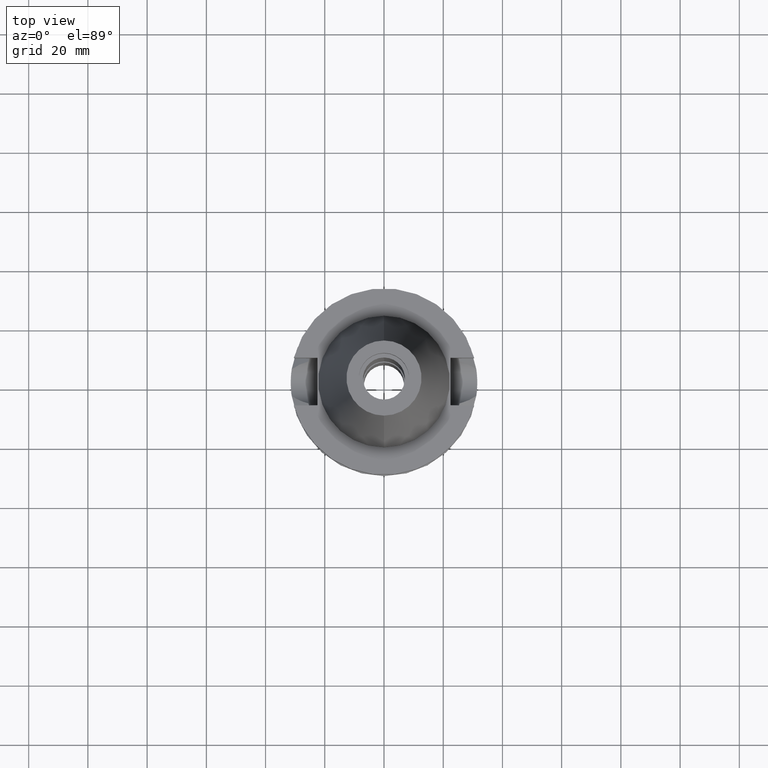
[diagram: clean part render]
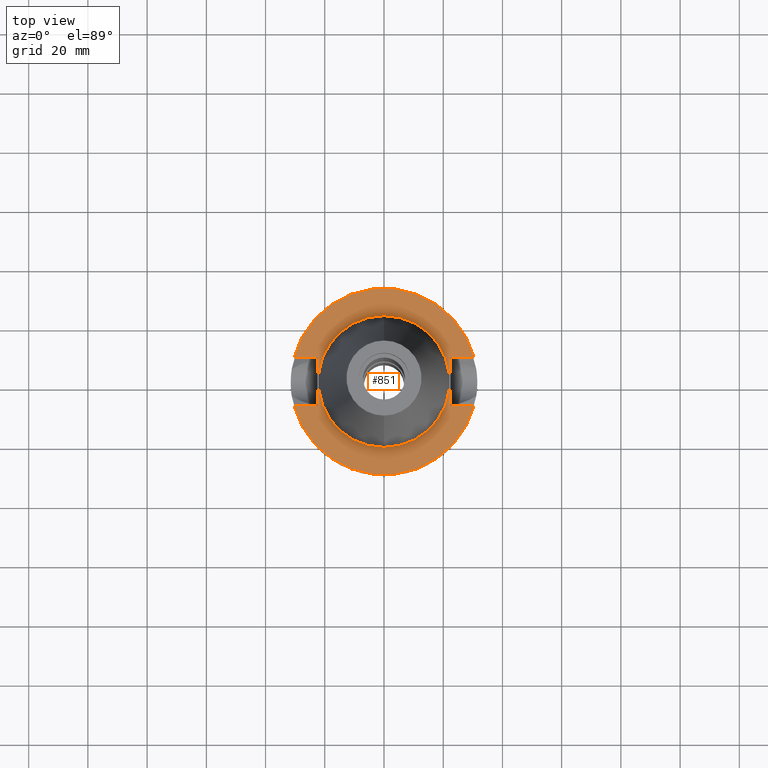
[diagram: same view with one face highlighted and labeled with its STEP entity id]
A machine part, top view. The second image highlights one B-rep face of the part: STEP entity #851.
In plain terms, the highlighted planar face has unit normal (0, 0, -1).
Its self-contained STEP definition (entity closure, byte-faithful):
#87 = FACE_OUTER_BOUND ( 'NONE', #1124, .T. ) ;
#156 = VECTOR ( 'NONE', #603, 1000.000000000000000 ) ;
#170 = VECTOR ( 'NONE', #1308, 1000.000000000000000 ) ;
#194 = DIRECTION ( 'NONE',  ( 0.0000000000000000000, 1.000000000000000000, 0.0000000000000000000 ) ) ;
#237 = EDGE_CURVE ( 'NONE', #246, #1020, #533, .T. ) ;
#246 = VERTEX_POINT ( 'NONE', #3118 ) ;
#249 = LINE ( 'NONE', #477, #760 ) ;
#304 = CARTESIAN_POINT ( 'NONE',  ( -22.50000000000000000, 8.050000000000000711, -2.000000000000000000 ) ) ;
#312 = EDGE_CURVE ( 'NONE', #246, #924, #2755, .T. ) ;
#396 = ORIENTED_EDGE ( 'NONE', *, *, #1803, .F. ) ;
#468 = CARTESIAN_POINT ( 'NONE',  ( 30.45402272279000044, 8.050000000000000711, -2.000000000000000000 ) ) ;
#477 = CARTESIAN_POINT ( 'NONE',  ( -22.50000000000000000, -8.050000000000000711, -2.000000000000000000 ) ) ;
#533 = LINE ( 'NONE', #3346, #3509 ) ;
#543 = ORIENTED_EDGE ( 'NONE', *, *, #1125, .F. ) ;
#574 = CIRCLE ( 'NONE', #688, 22.22500000000000142 ) ;
#603 = DIRECTION ( 'NONE',  ( 1.000000000000000000, 3.573249715389999860E-14, 0.0000000000000000000 ) ) ;
#607 = VERTEX_POINT ( 'NONE', #2176 ) ;
#609 = DIRECTION ( 'NONE',  ( 0.0000000000000000000, 0.0000000000000000000, -1.000000000000000000 ) ) ;
#643 = DIRECTION ( 'NONE',  ( 0.0000000000000000000, 0.0000000000000000000, 1.000000000000000000 ) ) ;
#651 = VERTEX_POINT ( 'NONE', #2711 ) ;
#688 = AXIS2_PLACEMENT_3D ( 'NONE', #2664, #2389, #761 ) ;
#696 = DIRECTION ( 'NONE',  ( 0.0000000000000000000, 1.000000000000000000, 0.0000000000000000000 ) ) ;
#725 = VERTEX_POINT ( 'NONE', #1900 ) ;
#760 = VECTOR ( 'NONE', #1366, 1000.000000000000000 ) ;
#761 = DIRECTION ( 'NONE',  ( 0.0000000000000000000, -1.000000000000000000, 0.0000000000000000000 ) ) ;
#768 = ORIENTED_EDGE ( 'NONE', *, *, #1852, .F. ) ;
#837 = VERTEX_POINT ( 'NONE', #2930 ) ;
#851 = ADVANCED_FACE ( 'NONE', ( #87, #1511 ), #1487, .F. ) ;
#906 = CIRCLE ( 'NONE', #1724, 22.22500000000000142 ) ;
#924 = VERTEX_POINT ( 'NONE', #3489 ) ;
#1020 = VERTEX_POINT ( 'NONE', #468 ) ;
#1059 = ORIENTED_EDGE ( 'NONE', *, *, #312, .F. ) ;
#1107 = ORIENTED_EDGE ( 'NONE', *, *, #2590, .F. ) ;
#1124 = EDGE_LOOP ( 'NONE', ( #1427, #396, #768, #1059, #2173, #1107, #2839, #1541 ) ) ;
#1125 = EDGE_CURVE ( 'NONE', #2872, #651, #574, .T. ) ;
#1157 = AXIS2_PLACEMENT_3D ( 'NONE', #3121, #2866, #2269 ) ;
#1167 = LINE ( 'NONE', #1478, #156 ) ;
#1184 = CARTESIAN_POINT ( 'NONE',  ( 0.0000000000000000000, 2.161746529854999700E-14, -2.000000000000000000 ) ) ;
#1260 = CARTESIAN_POINT ( 'NONE',  ( -22.50000000000000000, 8.050000000000000711, -2.000000000000000000 ) ) ;
#1308 = DIRECTION ( 'NONE',  ( -1.000000000000000000, 3.550916904668000126E-14, 0.0000000000000000000 ) ) ;
#1366 = DIRECTION ( 'NONE',  ( 0.0000000000000000000, 1.000000000000000000, 0.0000000000000000000 ) ) ;
#1427 = ORIENTED_EDGE ( 'NONE', *, *, #3358, .T. ) ;
#1478 = CARTESIAN_POINT ( 'NONE',  ( 22.50000000000000000, -8.050000000000000711, -2.000000000000000000 ) ) ;
#1487 = PLANE ( 'NONE',  #3095 ) ;
#1511 = FACE_BOUND ( 'NONE', #2587, .T. ) ;
#1541 = ORIENTED_EDGE ( 'NONE', *, *, #3291, .F. ) ;
#1576 = VERTEX_POINT ( 'NONE', #3273 ) ;
#1647 = EDGE_CURVE ( 'NONE', #3440, #837, #2661, .T. ) ;
#1724 = AXIS2_PLACEMENT_3D ( 'NONE', #1184, #643, #696 ) ;
#1725 = DIRECTION ( 'NONE',  ( 0.0000000000000000000, -1.000000000000000000, 0.0000000000000000000 ) ) ;
#1803 = EDGE_CURVE ( 'NONE', #607, #1576, #1982, .T. ) ;
#1852 = EDGE_CURVE ( 'NONE', #924, #607, #1167, .T. ) ;
#1870 = DIRECTION ( 'NONE',  ( 0.0000000000000000000, 0.0000000000000000000, -1.000000000000000000 ) ) ;
#1900 = CARTESIAN_POINT ( 'NONE',  ( -22.50000000000000000, -8.050000000000000711, -2.000000000000000000 ) ) ;
#1982 = CIRCLE ( 'NONE', #1157, 31.50000000000000000 ) ;
#2020 = CIRCLE ( 'NONE', #3382, 31.50000000000000000 ) ;
#2024 = VECTOR ( 'NONE', #2235, 1000.000000000000000 ) ;
#2173 = ORIENTED_EDGE ( 'NONE', *, *, #237, .T. ) ;
#2176 = CARTESIAN_POINT ( 'NONE',  ( 30.45402272279000044, -8.050000000000000711, -2.000000000000000000 ) ) ;
#2181 = CARTESIAN_POINT ( 'NONE',  ( 0.0000000000000000000, 2.161746529854999700E-14, -2.000000000000000000 ) ) ;
#2193 = CARTESIAN_POINT ( 'NONE',  ( -22.50000000000000000, -8.050000000000000711, -2.000000000000000000 ) ) ;
#2199 = DIRECTION ( 'NONE',  ( -1.000000000000000000, -3.550916904668000126E-14, 0.0000000000000000000 ) ) ;
#2235 = DIRECTION ( 'NONE',  ( 0.0000000000000000000, -1.000000000000000000, 0.0000000000000000000 ) ) ;
#2269 = DIRECTION ( 'NONE',  ( 0.0000000000000000000, -1.000000000000000000, 0.0000000000000000000 ) ) ;
#2325 = VECTOR ( 'NONE', #2199, 1000.000000000000000 ) ;
#2326 = EDGE_CURVE ( 'NONE', #651, #2872, #906, .T. ) ;
#2389 = DIRECTION ( 'NONE',  ( 0.0000000000000000000, 0.0000000000000000000, 1.000000000000000000 ) ) ;
#2470 = ORIENTED_EDGE ( 'NONE', *, *, #2326, .F. ) ;
#2587 = EDGE_LOOP ( 'NONE', ( #2470, #543 ) ) ;
#2590 = EDGE_CURVE ( 'NONE', #837, #1020, #2020, .T. ) ;
#2661 = LINE ( 'NONE', #1260, #2325 ) ;
#2664 = CARTESIAN_POINT ( 'NONE',  ( 0.0000000000000000000, 2.161746529854999700E-14, -2.000000000000000000 ) ) ;
#2711 = CARTESIAN_POINT ( 'NONE',  ( 0.0000000000000000000, 22.22500000000000142, -2.000000000000000000 ) ) ;
#2755 = LINE ( 'NONE', #2812, #2024 ) ;
#2812 = CARTESIAN_POINT ( 'NONE',  ( 22.50000000000000000, 8.050000000000000711, -2.000000000000000000 ) ) ;
#2831 = DIRECTION ( 'NONE',  ( 1.000000000000000000, -3.506251283225999947E-14, 0.0000000000000000000 ) ) ;
#2839 = ORIENTED_EDGE ( 'NONE', *, *, #1647, .F. ) ;
#2866 = DIRECTION ( 'NONE',  ( 0.0000000000000000000, 0.0000000000000000000, -1.000000000000000000 ) ) ;
#2872 = VERTEX_POINT ( 'NONE', #3153 ) ;
#2930 = CARTESIAN_POINT ( 'NONE',  ( -30.45402272279000044, 8.050000000000000711, -2.000000000000000000 ) ) ;
#3095 = AXIS2_PLACEMENT_3D ( 'NONE', #3127, #609, #1725 ) ;
#3118 = CARTESIAN_POINT ( 'NONE',  ( 22.50000000000000000, 8.050000000000000711, -2.000000000000000000 ) ) ;
#3121 = CARTESIAN_POINT ( 'NONE',  ( 0.0000000000000000000, 2.161746529854999700E-14, -2.000000000000000000 ) ) ;
#3127 = CARTESIAN_POINT ( 'NONE',  ( 0.0000000000000000000, 1.200153863163999924E-14, -2.000000000000000000 ) ) ;
#3153 = CARTESIAN_POINT ( 'NONE',  ( 0.0000000000000000000, -22.22500000000000142, -2.000000000000000000 ) ) ;
#3247 = LINE ( 'NONE', #2193, #170 ) ;
#3273 = CARTESIAN_POINT ( 'NONE',  ( -30.45402272279000044, -8.050000000000000711, -2.000000000000000000 ) ) ;
#3291 = EDGE_CURVE ( 'NONE', #725, #3440, #249, .T. ) ;
#3346 = CARTESIAN_POINT ( 'NONE',  ( 22.50000000000000000, 8.050000000000000711, -2.000000000000000000 ) ) ;
#3358 = EDGE_CURVE ( 'NONE', #725, #1576, #3247, .T. ) ;
#3382 = AXIS2_PLACEMENT_3D ( 'NONE', #2181, #1870, #194 ) ;
#3440 = VERTEX_POINT ( 'NONE', #304 ) ;
#3489 = CARTESIAN_POINT ( 'NONE',  ( 22.50000000000000000, -8.050000000000000711, -2.000000000000000000 ) ) ;
#3509 = VECTOR ( 'NONE', #2831, 1000.000000000000000 ) ;